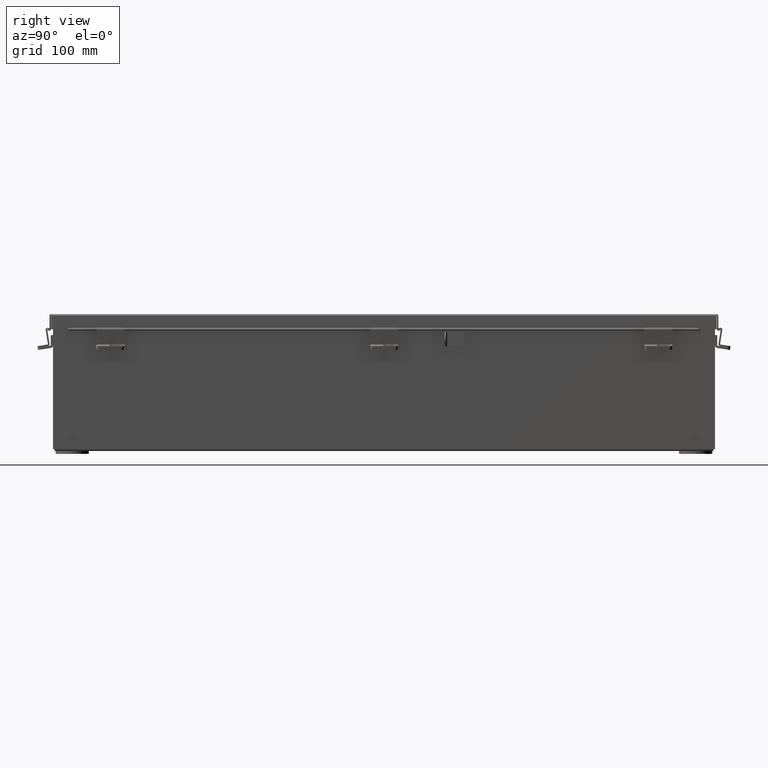
[diagram: clean part render]
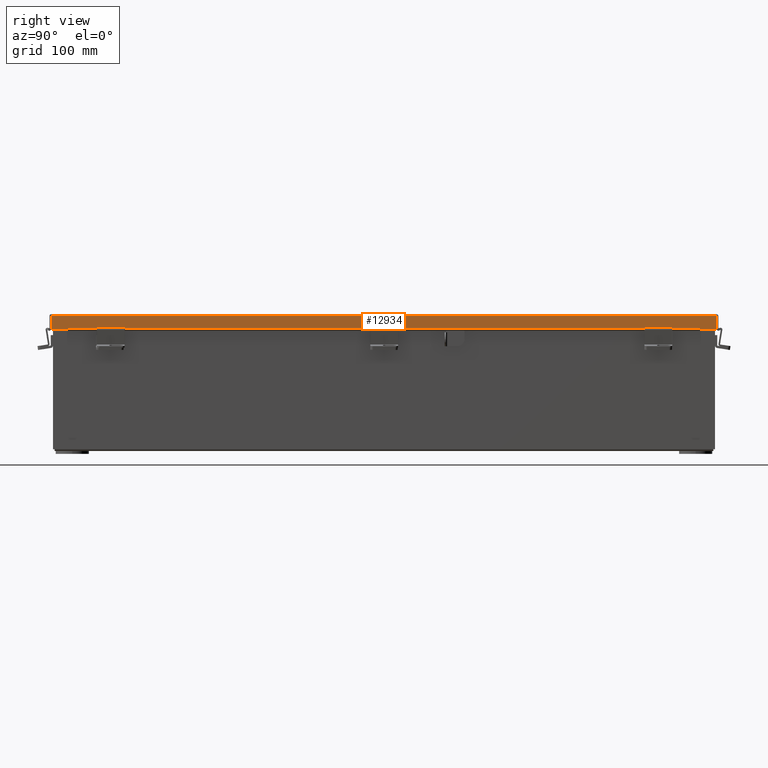
[diagram: same view with one face highlighted and labeled with its STEP entity id]
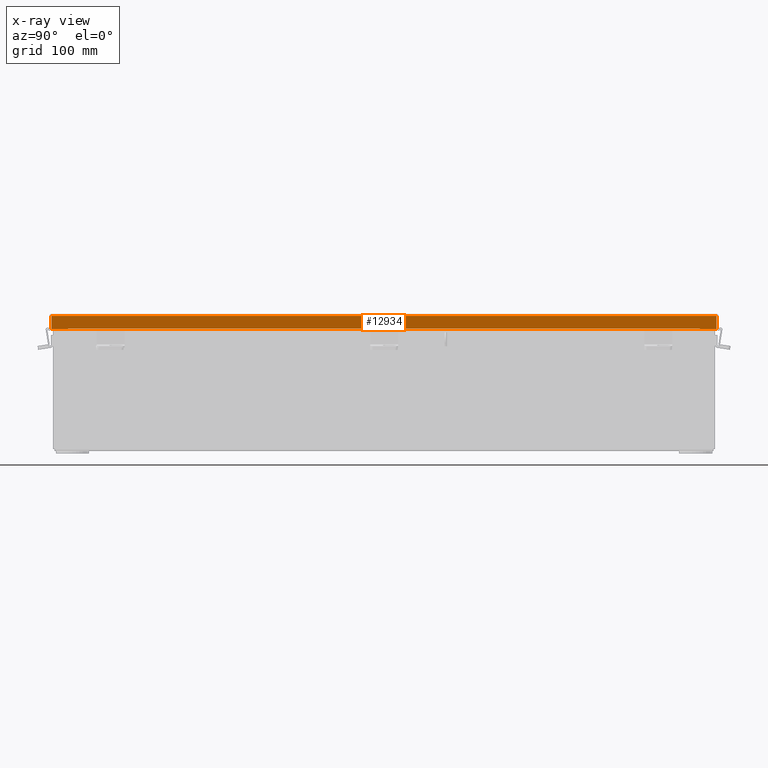
[diagram: x-ray of the same camera — body ghosted, the highlighted face saturated]
A machine part, right view. The second image highlights one B-rep face of the part: STEP entity #12934.
The next image is the same camera in x-ray: the body ghosted, the highlighted face saturated — about 0% of this face is hidden behind the body in this view.
In plain terms, the highlighted planar face has unit normal (-1, 0, -0).
Its self-contained STEP definition (entity closure, byte-faithful):
#159 = VERTEX_POINT ( 'NONE', #24618 ) ;
#295 = DIRECTION ( 'NONE',  ( 1.000000000000000000, 9.288764869425901800E-031, 3.569293475308537100E-015 ) ) ;
#296 = VECTOR ( 'NONE', #8130, 39.37007874015748100 ) ;
#521 = CARTESIAN_POINT ( 'NONE',  ( -3.156250000000008900, -15.07447893218813000, 0.01300000000000120000 ) ) ;
#1611 = ORIENTED_EDGE ( 'NONE', *, *, #10877, .T. ) ;
#2570 = AXIS2_PLACEMENT_3D ( 'NONE', #18442, #295, #14457 ) ;
#2737 = LINE ( 'NONE', #3341, #22979 ) ;
#2753 = VECTOR ( 'NONE', #24651, 39.37007874015748100 ) ;
#2941 = ORIENTED_EDGE ( 'NONE', *, *, #8903, .F. ) ;
#3085 = CARTESIAN_POINT ( 'NONE',  ( -3.156250000000008900, 15.15625000000000400, 0.01300000000000010700 ) ) ;
#3341 = CARTESIAN_POINT ( 'NONE',  ( -3.156250000000008900, 15.07447893218813700, 0.0000000000000000000 ) ) ;
#3622 = VECTOR ( 'NONE', #23266, 39.37007874015748100 ) ;
#5528 = LINE ( 'NONE', #8341, #21088 ) ;
#5862 = CARTESIAN_POINT ( 'NONE',  ( -3.156250000000011100, 15.07447893218813700, 0.6122999999999994000 ) ) ;
#5895 = VERTEX_POINT ( 'NONE', #22769 ) ;
#5953 = ORIENTED_EDGE ( 'NONE', *, *, #7055, .F. ) ;
#6112 = CARTESIAN_POINT ( 'NONE',  ( -3.156250000000010200, 14.32447893218813700, 0.5967115427318782100 ) ) ;
#6634 = VERTEX_POINT ( 'NONE', #521 ) ;
#7055 = EDGE_CURVE ( 'NONE', #8915, #20011, #16451, .T. ) ;
#7526 = ORIENTED_EDGE ( 'NONE', *, *, #10358, .F. ) ;
#7864 = CARTESIAN_POINT ( 'NONE',  ( -3.156250000000011100, 14.32447893218813700, 0.6122999999999994000 ) ) ;
#8085 = LINE ( 'NONE', #10386, #2753 ) ;
#8130 = DIRECTION ( 'NONE',  ( -8.757496902906192300E-031, -1.000000000000000000, -2.529285277364869100E-029 ) ) ;
#8290 = EDGE_LOOP ( 'NONE', ( #7526, #17417, #2941, #14027, #13052, #1611, #16940, #5953 ) ) ;
#8341 = CARTESIAN_POINT ( 'NONE',  ( -3.156250000000008900, -15.07447893218813000, -1.092739197465705300E-014 ) ) ;
#8902 = LINE ( 'NONE', #18925, #14322 ) ;
#8903 = EDGE_CURVE ( 'NONE', #5895, #10395, #2737, .T. ) ;
#8906 = CARTESIAN_POINT ( 'NONE',  ( -3.156250000000011100, -14.32447893218812900, 0.5967115427318782100 ) ) ;
#8915 = VERTEX_POINT ( 'NONE', #11473 ) ;
#9001 = LINE ( 'NONE', #3085, #3622 ) ;
#9617 = EDGE_CURVE ( 'NONE', #6634, #5895, #9001, .T. ) ;
#10358 = EDGE_CURVE ( 'NONE', #13911, #8915, #22909, .T. ) ;
#10386 = CARTESIAN_POINT ( 'NONE',  ( -3.156250000000011100, 0.0000000000000000000, 0.6122999999999994000 ) ) ;
#10395 = VERTEX_POINT ( 'NONE', #5862 ) ;
#10787 = VERTEX_POINT ( 'NONE', #18664 ) ;
#10877 = EDGE_CURVE ( 'NONE', #159, #10787, #8902, .T. ) ;
#11473 = CARTESIAN_POINT ( 'NONE',  ( -3.156250000000011100, 14.32447893218813600, 0.5967115427318782100 ) ) ;
#11720 = DIRECTION ( 'NONE',  ( 1.752481305030142700E-013, -1.401985044024109400E-013, -1.000000000000000000 ) ) ;
#12902 = DIRECTION ( 'NONE',  ( 8.757496902906192300E-031, 1.000000000000000000, 2.529285277364869100E-029 ) ) ;
#12934 = ADVANCED_FACE ( 'NONE', ( #21785 ), #24524, .F. ) ;
#13052 = ORIENTED_EDGE ( 'NONE', *, *, #23399, .T. ) ;
#13911 = VERTEX_POINT ( 'NONE', #7864 ) ;
#14027 = ORIENTED_EDGE ( 'NONE', *, *, #9617, .F. ) ;
#14322 = VECTOR ( 'NONE', #12902, 39.37007874015748100 ) ;
#14457 = DIRECTION ( 'NONE',  ( 3.569293475308537100E-015, -2.528052682200451200E-029, -1.000000000000000000 ) ) ;
#16451 = LINE ( 'NONE', #6112, #296 ) ;
#16940 = ORIENTED_EDGE ( 'NONE', *, *, #22293, .F. ) ;
#17417 = ORIENTED_EDGE ( 'NONE', *, *, #22793, .T. ) ;
#17534 = VECTOR ( 'NONE', #11720, 39.37007874015748100 ) ;
#18442 = CARTESIAN_POINT ( 'NONE',  ( -3.156250000000008900, 0.0000000000000000000, -1.202013117212275700E-014 ) ) ;
#18472 = DIRECTION ( 'NONE',  ( -3.569293475308537100E-015, 2.528052682200451200E-029, 1.000000000000000000 ) ) ;
#18664 = CARTESIAN_POINT ( 'NONE',  ( -3.156250000000011100, -14.32447893218812900, 0.6123000000000005100 ) ) ;
#18925 = CARTESIAN_POINT ( 'NONE',  ( -3.156250000000011100, 0.0000000000000000000, 0.6122999999999994000 ) ) ;
#19867 = CARTESIAN_POINT ( 'NONE',  ( -3.156250000000012900, 14.32447893218813700, 0.6122999999999994000 ) ) ;
#20011 = VERTEX_POINT ( 'NONE', #8906 ) ;
#20187 = VECTOR ( 'NONE', #23101, 39.37007874015748100 ) ;
#21088 = VECTOR ( 'NONE', #18472, 39.37007874015748100 ) ;
#21785 = FACE_OUTER_BOUND ( 'NONE', #8290, .T. ) ;
#22293 = EDGE_CURVE ( 'NONE', #20011, #10787, #25540, .T. ) ;
#22769 = CARTESIAN_POINT ( 'NONE',  ( -3.156250000000008900, 15.07447893218813700, 0.01300000000000010700 ) ) ;
#22793 = EDGE_CURVE ( 'NONE', #13911, #10395, #8085, .T. ) ;
#22909 = LINE ( 'NONE', #19867, #17534 ) ;
#22979 = VECTOR ( 'NONE', #23589, 39.37007874015748100 ) ;
#23011 = CARTESIAN_POINT ( 'NONE',  ( -3.156250000000010200, -14.32447893218812900, 0.5967115427318782100 ) ) ;
#23101 = DIRECTION ( 'NONE',  ( -7.009925220120156900E-014, 2.526820087036043900E-029, 1.000000000000000000 ) ) ;
#23266 = DIRECTION ( 'NONE',  ( 1.002529191948047200E-030, 1.000000000000000000, -3.604912816379201100E-017 ) ) ;
#23399 = EDGE_CURVE ( 'NONE', #6634, #159, #5528, .T. ) ;
#23589 = DIRECTION ( 'NONE',  ( -3.569293475308537100E-015, 2.528052682200451200E-029, 1.000000000000000000 ) ) ;
#24524 = PLANE ( 'NONE',  #2570 ) ;
#24618 = CARTESIAN_POINT ( 'NONE',  ( -3.156250000000011100, -15.07447893218813000, 0.6123000000000005100 ) ) ;
#24651 = DIRECTION ( 'NONE',  ( 8.757496902906192300E-031, 1.000000000000000000, 2.529285277364869100E-029 ) ) ;
#25540 = LINE ( 'NONE', #23011, #20187 ) ;